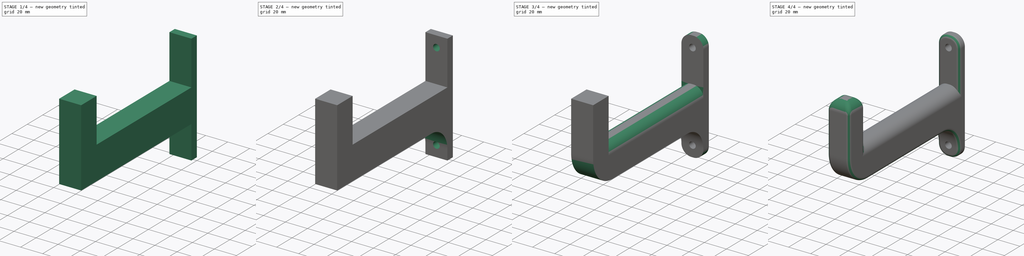
[diagram: build sequence overview — one tinted view per stage of 4, left to right]
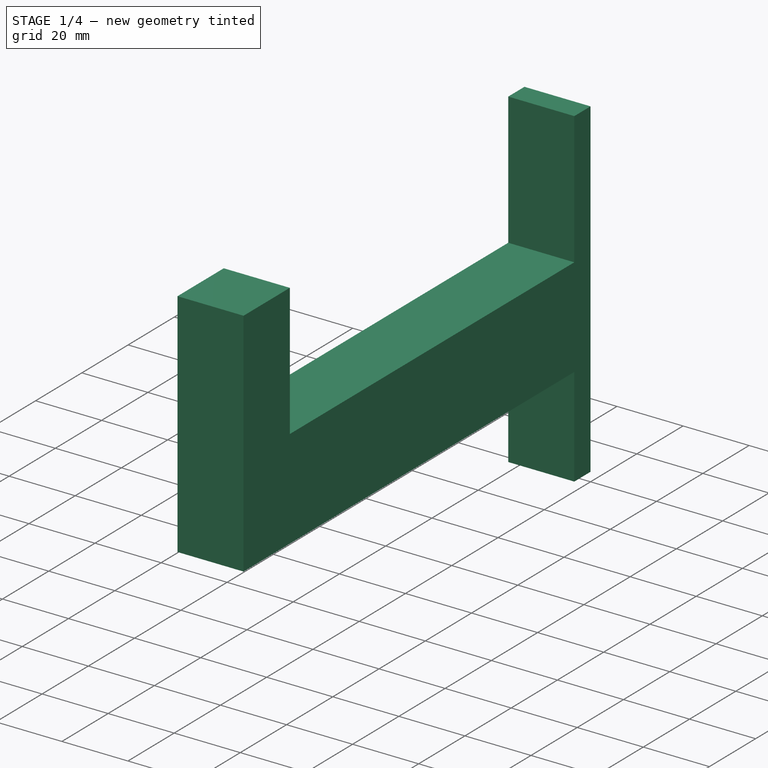
[diagram: stage 1 of 4 — iso view after this stage's code; geometry added in this stage tinted green]
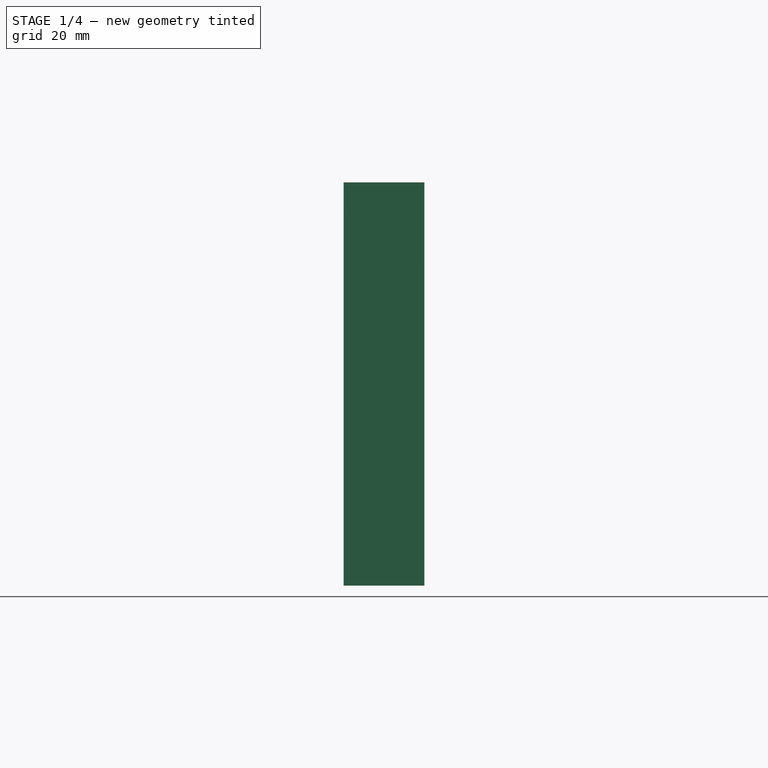
[diagram: stage 1 of 4 — front view after this stage's code; geometry added in this stage tinted green]
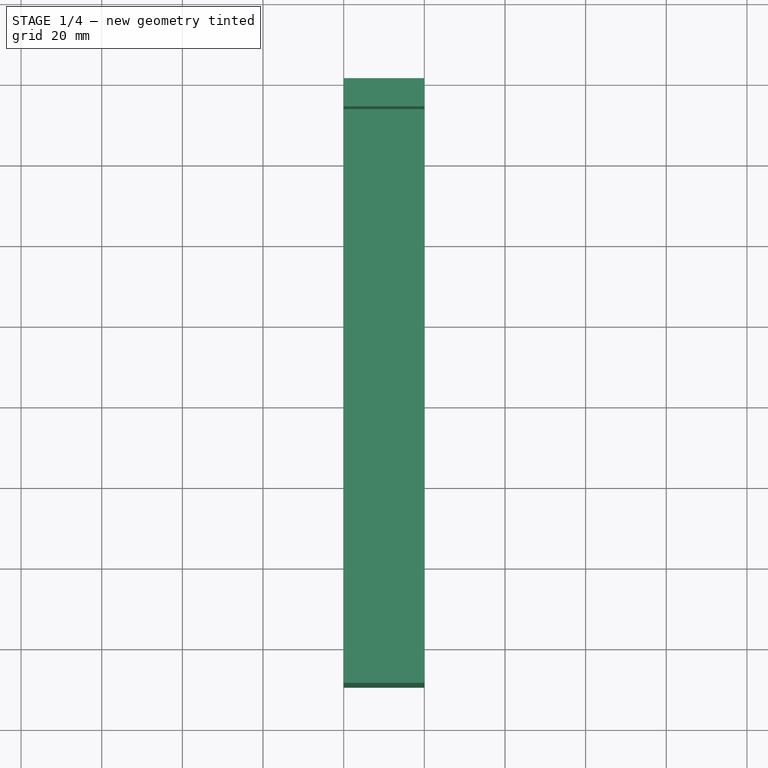
[diagram: stage 1 of 4 — top view after this stage's code; geometry added in this stage tinted green]
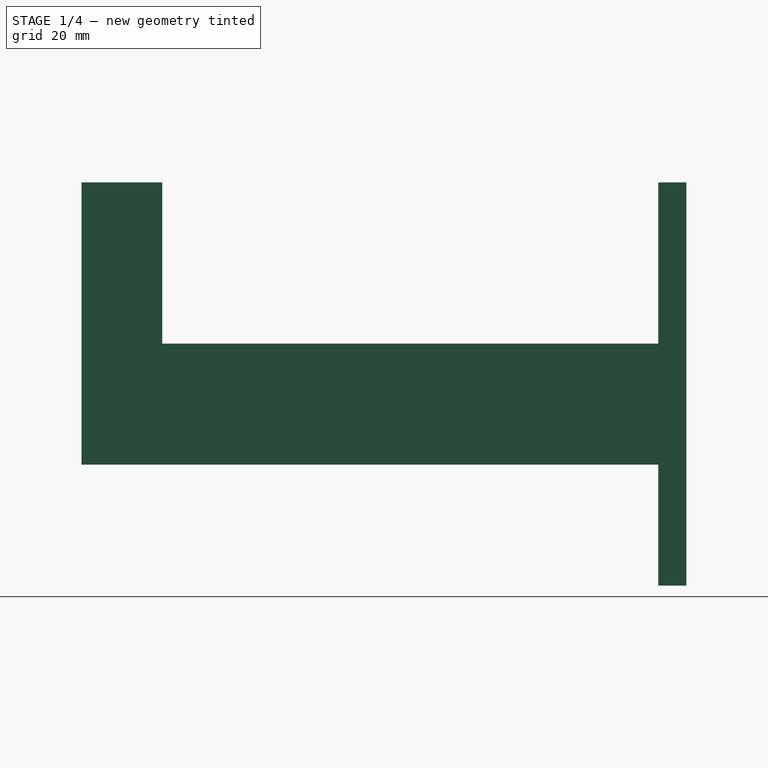
[diagram: stage 1 of 4 — right view after this stage's code; geometry added in this stage tinted green]
FCSTD DOCUMENT  (FreeCAD 1.1R20260325 (Git shallow))
Label: hanger_wall_hanger
License: All rights reserved
LicenseURL: https://en.wikipedia.org/wiki/All_rights_reserved
objects: PartDesign::Fillet×7, PartDesign::Pad×3, Sketcher::SketchObject×2, PartDesign::SubtractiveCylinder×2, App::Point×1, PartDesign::Body×1
note: 41 computed .brp shape members not serialized (recipe doc carries the construction recipe); baked Part::Feature solids carry a one-line shape summary decoded from their .brp

FEATURE [App::Point] Origin001
  Role = Origin
FEATURE [Sketcher::SketchObject] Sketch
  ArcFitTolerance = 1e-06
  AttachmentSupport = -> [Origin]
  ExternalTypes = [0]
  FullyConstrained = true
  MakeInternals = true
  MapMode = 5
  Placement = pos=(0,0,0) rot=(1,0,0;1.5708rad)
  _ExternalGeoVersion = 1
  sketch-geometry (10):
    g0: LineSegment StartX=0 StartY=0 StartZ=0 EndX=20 EndY=0 EndZ=0
    g1: LineSegment StartX=0 StartY=30 StartZ=0 EndX=0 EndY=0 EndZ=0
    g2: LineSegment StartX=0 StartY=30 StartZ=0 EndX=20 EndY=30 EndZ=0
    g3: LineSegment StartX=0 StartY=0 StartZ=0 EndX=0 EndY=70 EndZ=0
    g4: LineSegment StartX=0 StartY=70 StartZ=0 EndX=20 EndY=70 EndZ=0
    g5: LineSegment StartX=0 StartY=0 StartZ=0 EndX=0 EndY=-30 EndZ=0
    g6: LineSegment StartX=0 StartY=-30 StartZ=0 EndX=20 EndY=-30 EndZ=0
    g7: LineSegment StartX=20 StartY=-30 StartZ=0 EndX=20 EndY=0 EndZ=0
    g8: LineSegment StartX=20 StartY=0 StartZ=0 EndX=20 EndY=30 EndZ=0
    g9: LineSegment StartX=20 StartY=30 StartZ=0 EndX=20 EndY=70 EndZ=0
  constraints (27):
    c: Coincident(g1,g0)
    c: Horizontal(g0)
    c: Vertical(g1)
    c: Coincident(g0,g-1)
    c: DistanceY(g0,g2) = 30
    c: Coincident(g2,g1)
    c: Coincident(g3,g0)
    c: PointOnObject(g3,g-2)
    c: Coincident(g3,g4)
    c: DistanceY(g0,g4) = 70
    c: Coincident(g5,g0)
    c: Vertical(g5)
    c: Coincident(g6,g5)
    c: Horizontal(g6)
    c: Coincident(g7,g6)
    c: Coincident(g7,g0)
    c: Vertical(g7)
    c: DistanceX(g0,g0) = 20
    c: DistanceY(g7,g7) = 30
    c: Coincident(g8,g0)
    c: Coincident(g8,g2)
    c: Vertical(g8)
    c: Coincident(g9,g2)
    c: Coincident(g9,g4)
    c: Vertical(g9)
    c: Equal(g1,g8)
    c: Horizontal(g4)
FEATURE [PartDesign::Pad] Pad
  Direction = (0,-1,2e-16)
  Length = 150
  Length2 = 10
  Profile = -> Sketch [Edge6,Edge5,Edge7,Edge4]
  ReferenceAxis = -> Sketch [N_Axis]
  Refine = true
  SideType = 0
  Suppressed = false
  Type = 0
  Type2 = 0
FEATURE [Sketcher::SketchObject] Sketch001
  ArcFitTolerance = 1e-06
  ExternalTypes = [0]
  FullyConstrained = true
  MakeInternals = true
  MapMode = 5
  Placement = pos=(0,0,0) rot=(1,0,0;3.14159rad)
  _ExternalGeoVersion = 1
  sketch-geometry (4):
    g0: LineSegment StartX=0 StartY=150 StartZ=0 EndX=20 EndY=150 EndZ=0
    g1: LineSegment StartX=20 StartY=150 StartZ=0 EndX=20 EndY=130 EndZ=0
    g2: LineSegment StartX=20 StartY=130 StartZ=0 EndX=0 EndY=130 EndZ=0
    g3: LineSegment StartX=0 StartY=130 StartZ=0 EndX=0 EndY=150 EndZ=0
  constraints (10):
    c: Coincident(g0,g-3)
    c: Coincident(g0,g-3)
    c: Coincident(g1,g0)
    c: Vertical(g1)
    c: Coincident(g2,g1)
    c: PointOnObject(g2,g-2)
    c: Horizontal(g2)
    c: Coincident(g3,g2)
    c: Coincident(g3,g0)
    c: Equal(g1,g0)
FEATURE [PartDesign::Pad] Pad001
  BaseFeature = -> Pad
  Direction = (0,-1,2e-16)
  Length = 7
  Length2 = 10
  Profile = -> Sketch [Edge10,Edge8,Edge3,Edge1,Edge2,Edge5,Edge9]
  ReferenceAxis = -> Sketch [N_Axis]
  Refine = true
  SideType = 0
  Suppressed = false
  Type = 0
  Type2 = 0
FEATURE [PartDesign::Pad] Pad002
  BaseFeature = -> Pad001
  Direction = (0,0,-1)
  Length = 70
  Length2 = 10
  Profile = -> Sketch001
  ReferenceAxis = -> Sketch001 [N_Axis]
  Refine = true
  Reversed = true
  SideType = 0
  Suppressed = false
  Type = 0
  Type2 = 0
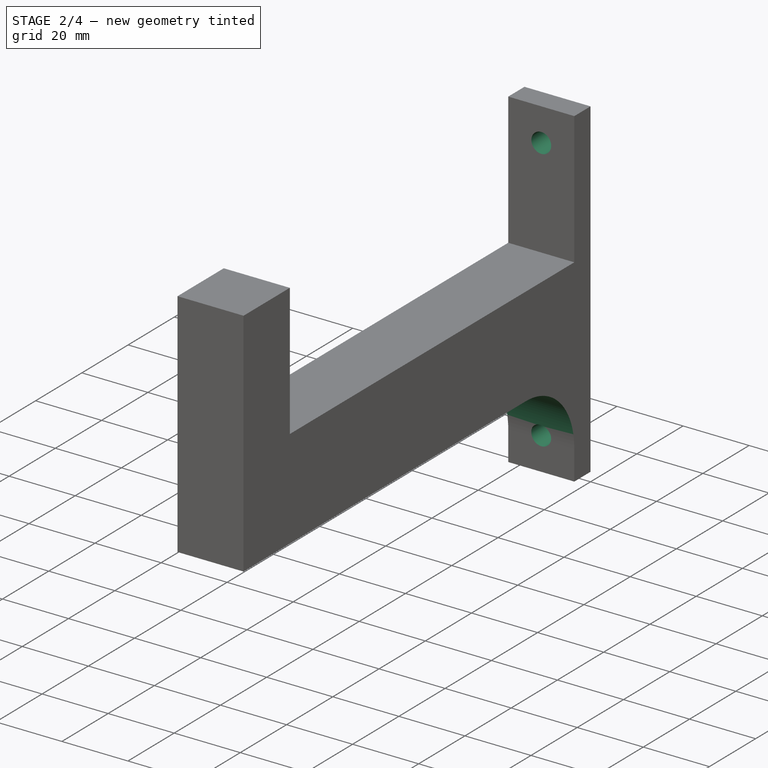
[diagram: stage 2 of 4 — iso view after this stage's code; geometry added in this stage tinted green]
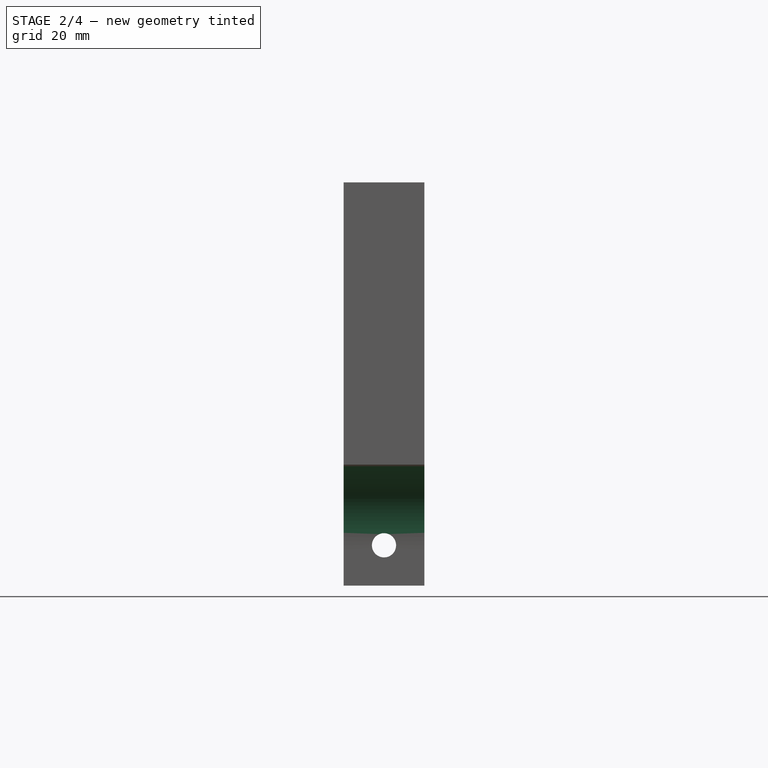
[diagram: stage 2 of 4 — front view after this stage's code; geometry added in this stage tinted green]
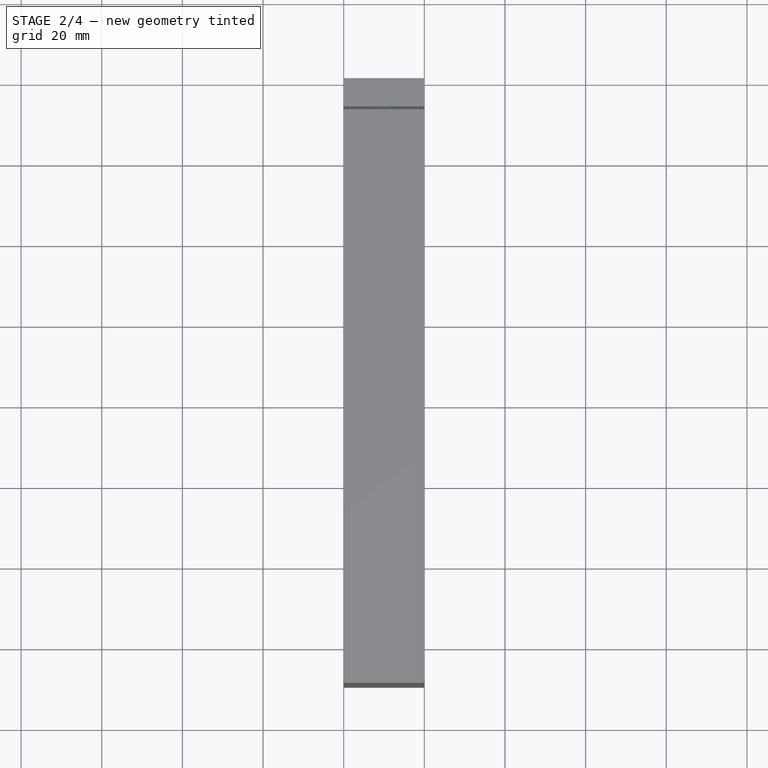
[diagram: stage 2 of 4 — top view after this stage's code; geometry added in this stage tinted green]
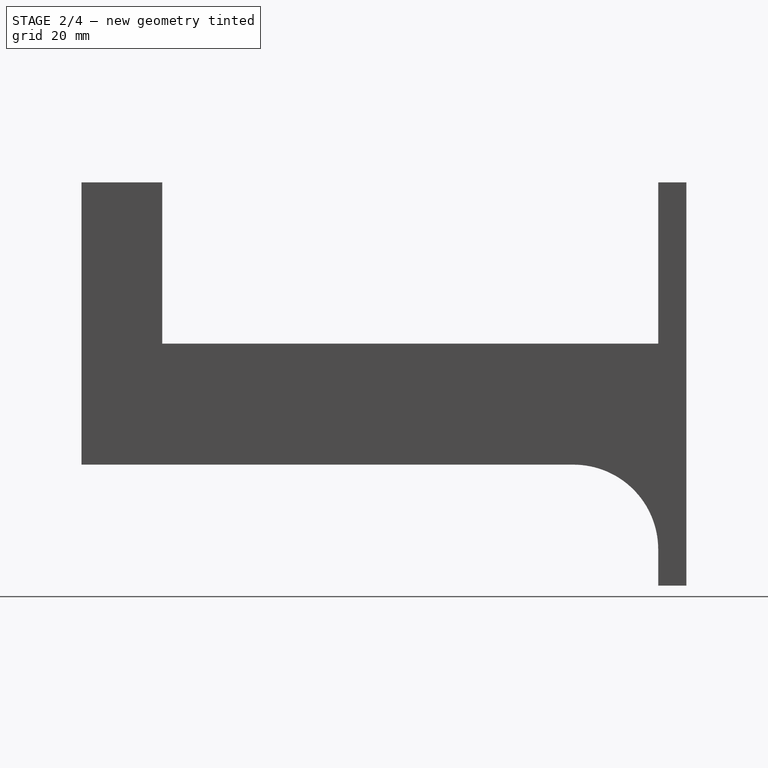
[diagram: stage 2 of 4 — right view after this stage's code; geometry added in this stage tinted green]
FEATURE [PartDesign::Fillet] Fillet
  Base = -> Pad002 [Edge18]
  BaseFeature = -> Pad002
  Radius = 21
  Refine = true
  SupportTransform = false
  Suppressed = false
  UseAllEdges = false
FEATURE [PartDesign::SubtractiveCylinder] Cylinder
  Angle = 360
  AttacherType = Attacher::AttachEngine3D
  AttachmentOffset = pos=(10,10,-9) rot=(0,0,1;0rad)
  AttachmentSupport = -> [Fillet]
  BaseFeature = -> Fillet
  FirstAngle = 0
  Height = 10
  MapMode = 7
  Placement = pos=(10,-9,-20) rot=(0,0.707107,0.707107;3.14159rad)
  Radius = 3
  Refine = true
  SecondAngle = 0
  Suppressed = false
FEATURE [PartDesign::SubtractiveCylinder] Cylinder001
  Angle = 360
  AttacherType = Attacher::AttachEngine3D
  AttachmentOffset = pos=(10,-10,-8) rot=(0,0,1;0rad)
  AttachmentSupport = -> [Cylinder]
  BaseFeature = -> Cylinder
  FirstAngle = 0
  Height = 10
  MapMode = 7
  Placement = pos=(10,-8,60) rot=(0,0.707107,0.707107;3.14159rad)
  Radius = 3
  Refine = true
  SecondAngle = 0
  Suppressed = false
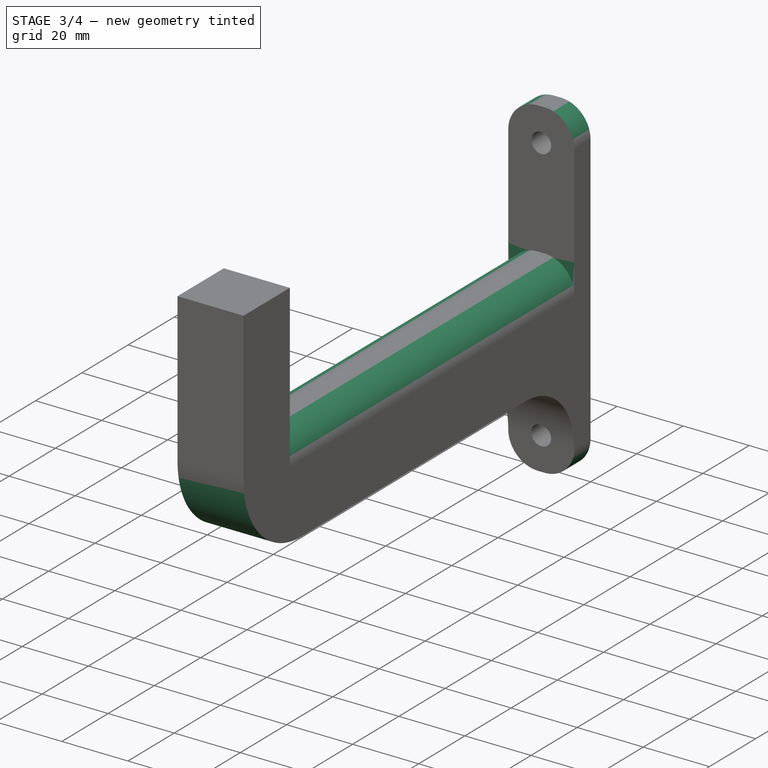
[diagram: stage 3 of 4 — iso view after this stage's code; geometry added in this stage tinted green]
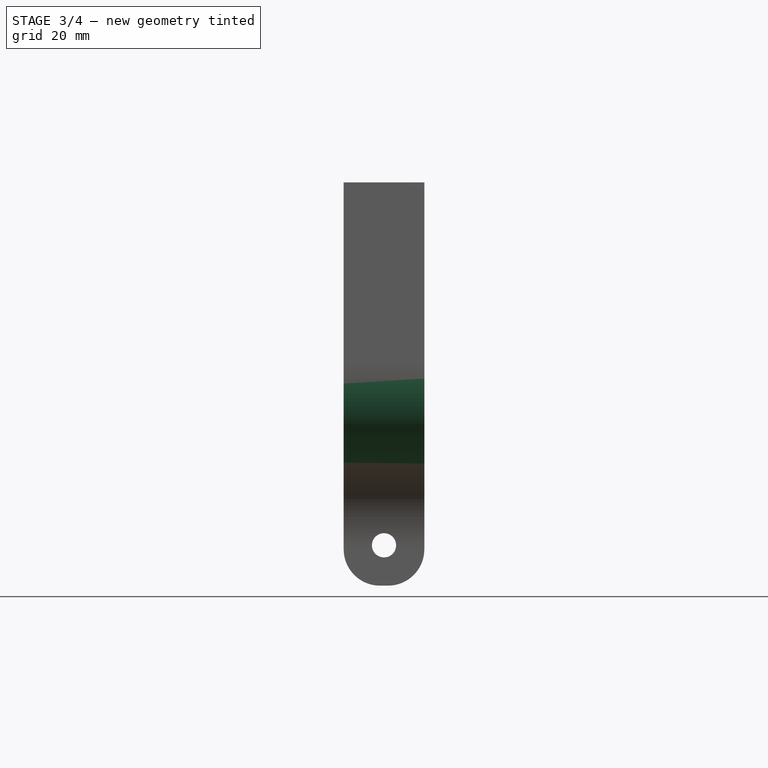
[diagram: stage 3 of 4 — front view after this stage's code; geometry added in this stage tinted green]
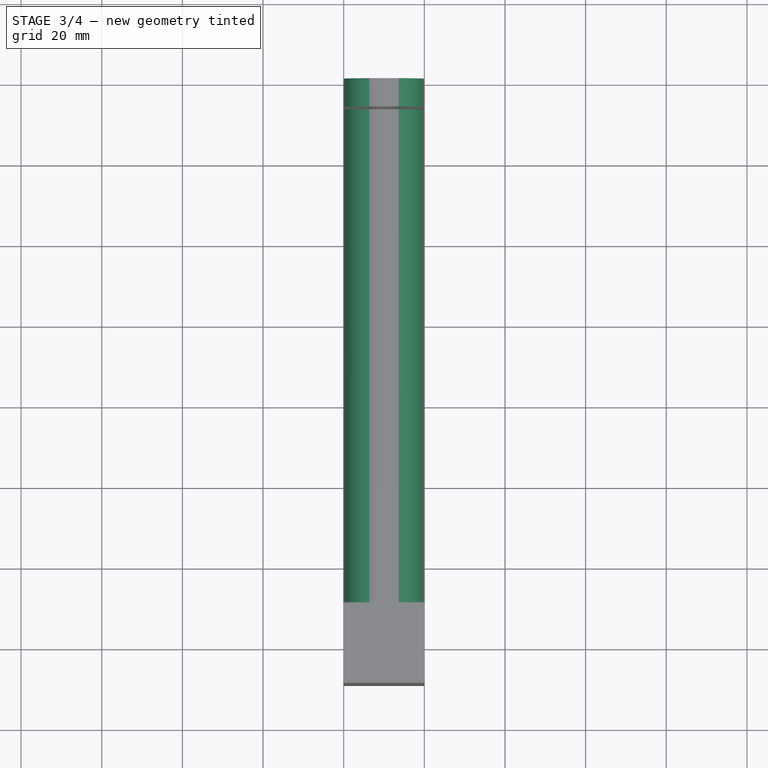
[diagram: stage 3 of 4 — top view after this stage's code; geometry added in this stage tinted green]
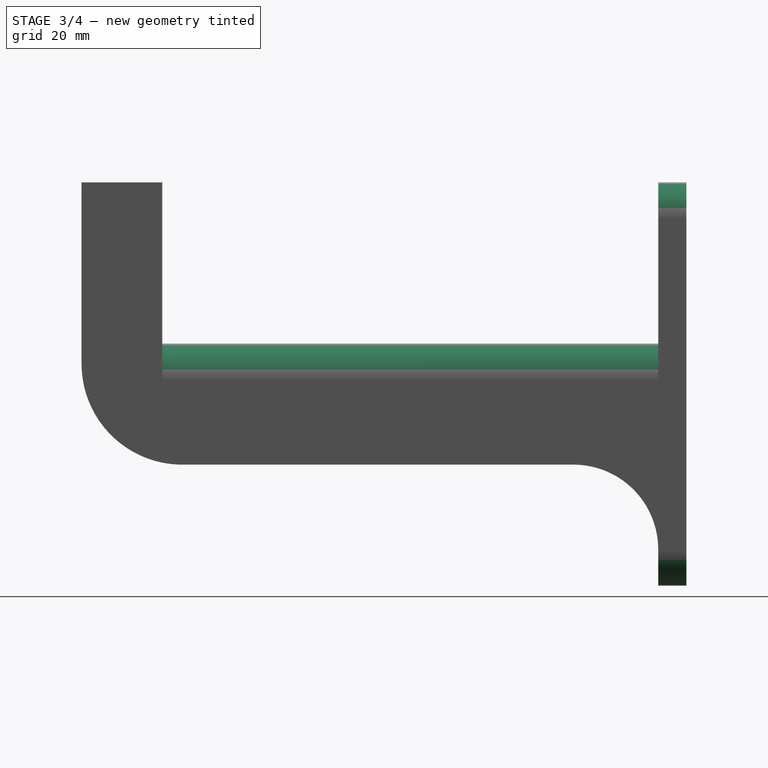
[diagram: stage 3 of 4 — right view after this stage's code; geometry added in this stage tinted green]
FEATURE [PartDesign::Fillet] Fillet001
  Base = -> Cylinder001 [Edge30,Edge22]
  BaseFeature = -> Cylinder001
  Placement = pos=(10,-8,60) rot=(0,0.707107,0.707107;3.14159rad)
  Radius = 9
  Refine = true
  SupportTransform = false
  Suppressed = false
  UseAllEdges = false
FEATURE [PartDesign::Fillet] Fillet002
  Base = -> Fillet001 [Edge42]
  BaseFeature = -> Fillet001
  Placement = pos=(10,-8,60) rot=(0,0.707107,0.707107;3.14159rad)
  Radius = 25
  Refine = true
  SupportTransform = false
  Suppressed = false
  UseAllEdges = false
FEATURE [PartDesign::Fillet] Fillet003
  Base = -> Fillet002 [Edge39,Edge10,Edge14,Edge51]
  BaseFeature = -> Fillet002
  Placement = pos=(10,-8,60) rot=(0,0.707107,0.707107;3.14159rad)
  Radius = 9
  Refine = true
  SupportTransform = false
  Suppressed = false
  UseAllEdges = false
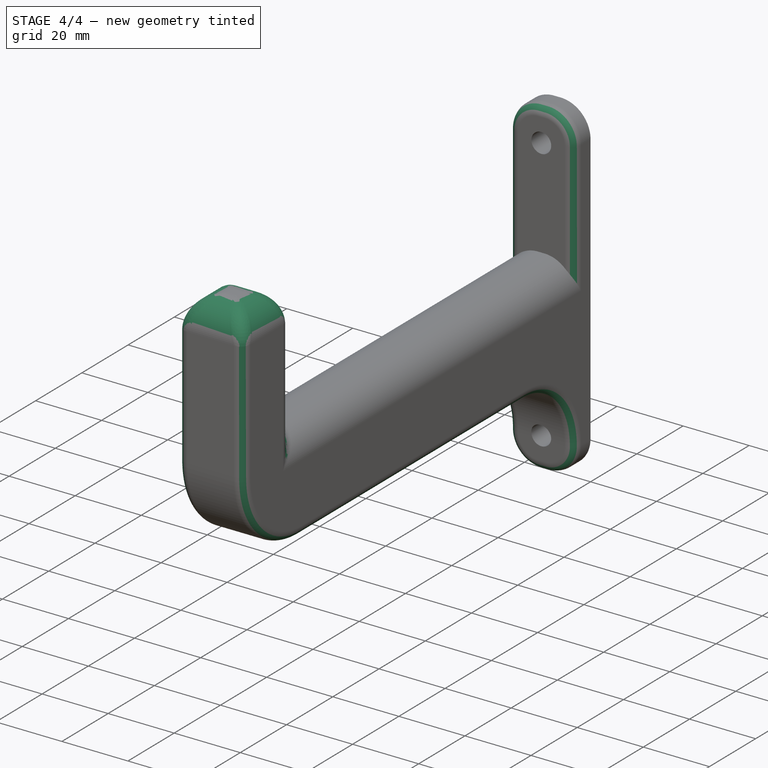
[diagram: stage 4 of 4 — iso view after this stage's code; geometry added in this stage tinted green]
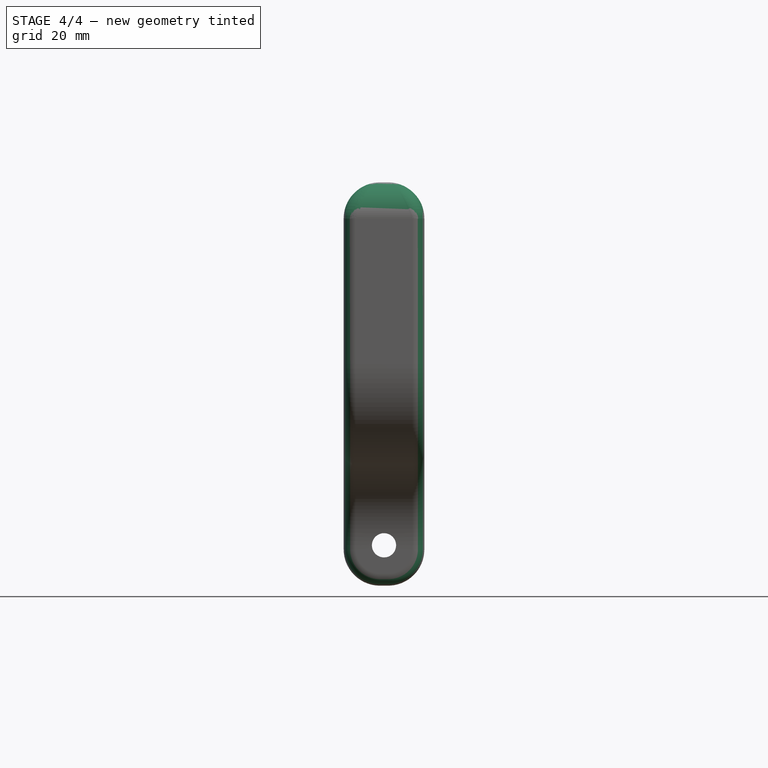
[diagram: stage 4 of 4 — front view after this stage's code; geometry added in this stage tinted green]
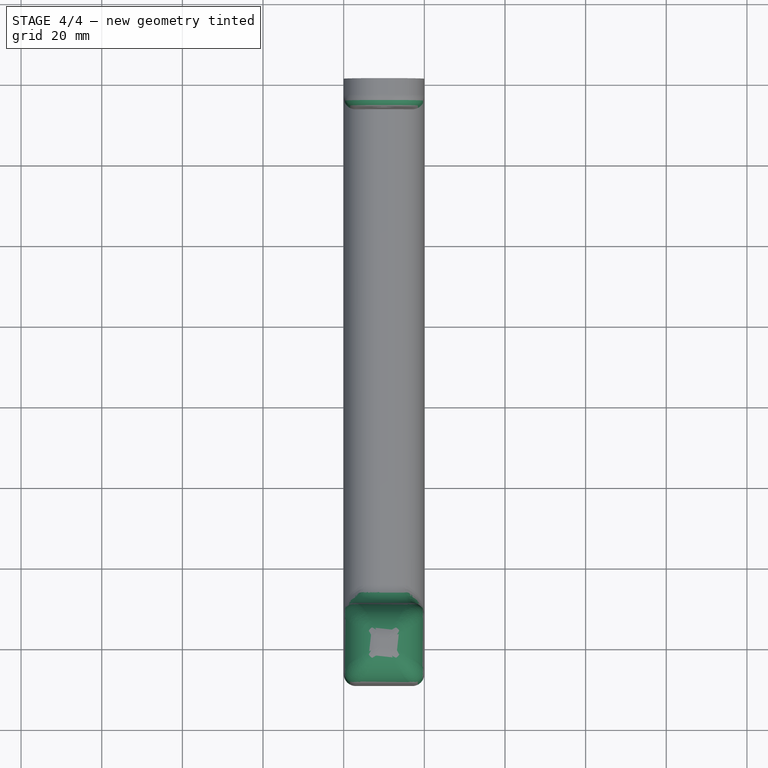
[diagram: stage 4 of 4 — top view after this stage's code; geometry added in this stage tinted green]
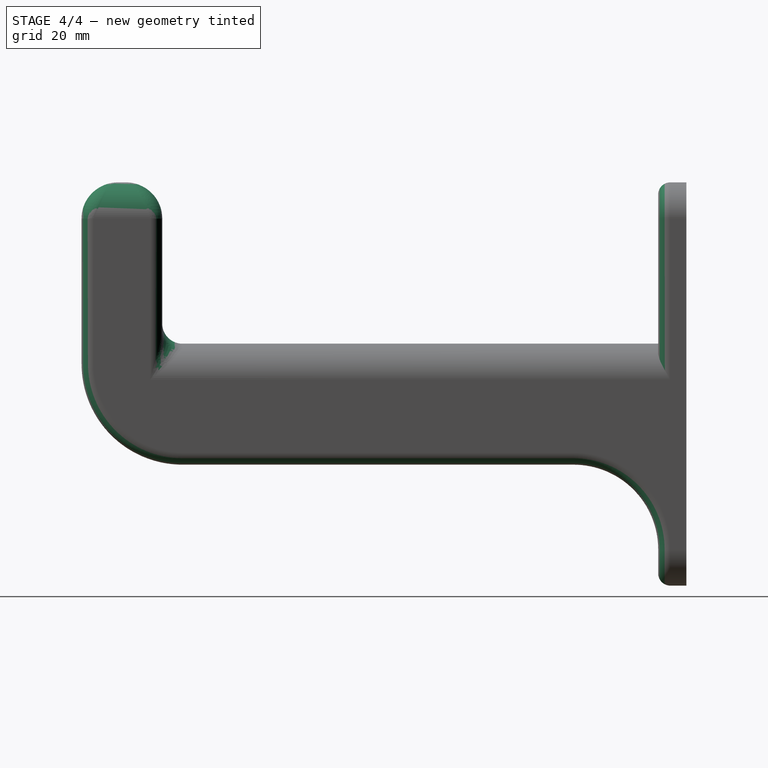
[diagram: stage 4 of 4 — right view after this stage's code; geometry added in this stage tinted green]
FEATURE [PartDesign::Fillet] Fillet004
  Base = -> Fillet003 [Edge12,Edge11,Edge53,Edge50,Edge27,Edge4]
  BaseFeature = -> Fillet003
  Placement = pos=(10,-8,60) rot=(0,0.707107,0.707107;3.14159rad)
  Radius = 3
  Refine = true
  SupportTransform = false
  Suppressed = false
  UseAllEdges = false
FEATURE [PartDesign::Fillet] Fillet005
  Base = -> Fillet004 [Edge11,Edge41,Edge39,Edge44]
  BaseFeature = -> Fillet004
  Placement = pos=(10,-8,60) rot=(0,0.707107,0.707107;3.14159rad)
  Radius = 9
  Refine = true
  SupportTransform = false
  Suppressed = false
  UseAllEdges = false
FEATURE [PartDesign::Fillet] Fillet006
  Base = -> Fillet005 [Edge60]
  BaseFeature = -> Fillet005
  Placement = pos=(10,-8,60) rot=(0,0.707107,0.707107;3.14159rad)
  Radius = 5
  Refine = true
  SupportTransform = false
  Suppressed = false
  UseAllEdges = false
FEATURE [PartDesign::Body] Body
  AllowCompound = false
  Group = -> [Sketch,Pad,Sketch001,Pad001,Pad002,Fillet,Cylinder,Cylinder001,Fillet001,Fillet002,Fillet003,Fillet004,Fillet005,Fillet006]
  Origin = -> Origin
  Tip = -> Fillet006
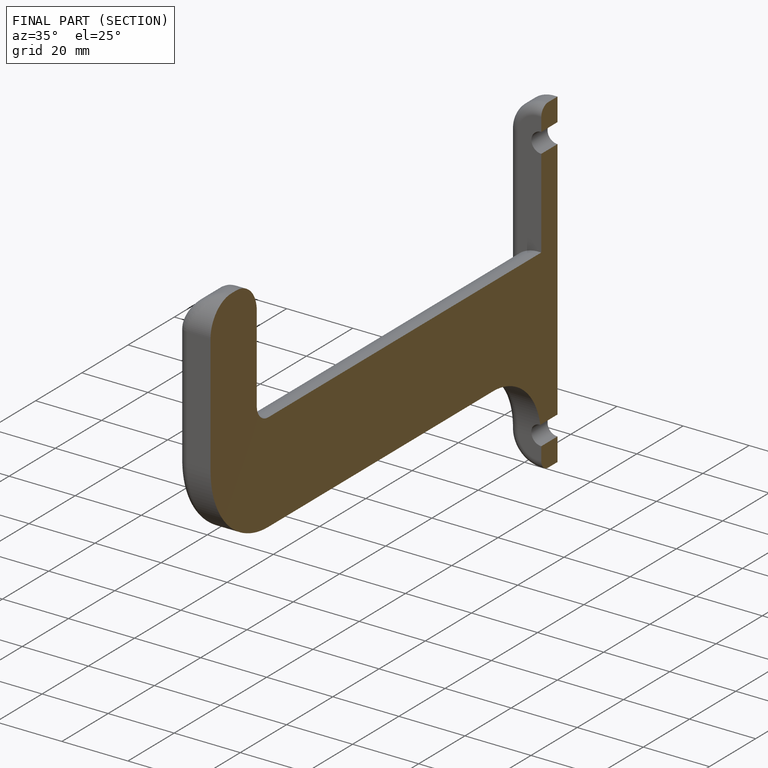
[diagram: finished part — half-section view (interior)]
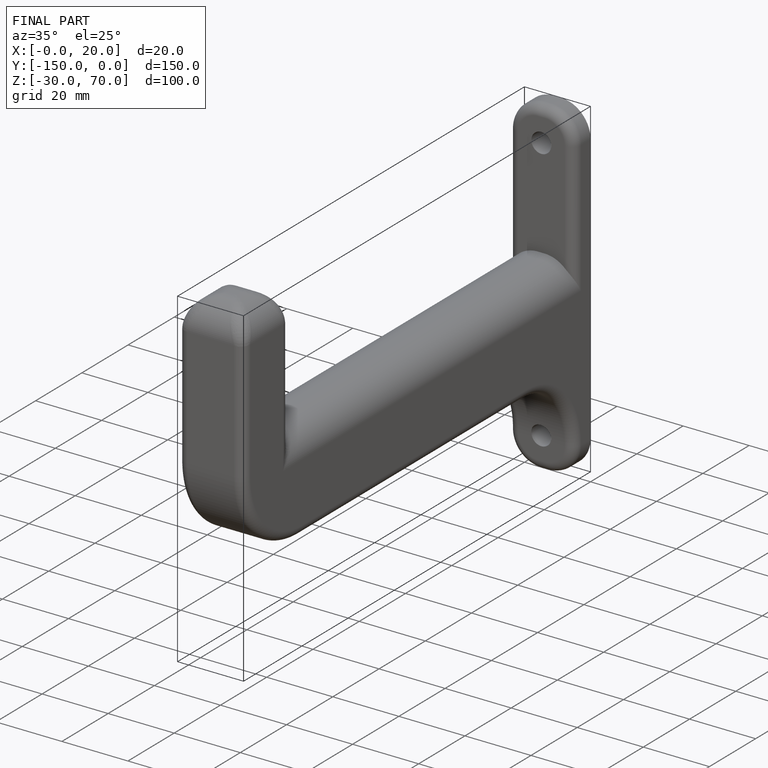
[diagram: finished part — iso view with bounding-box wireframe]
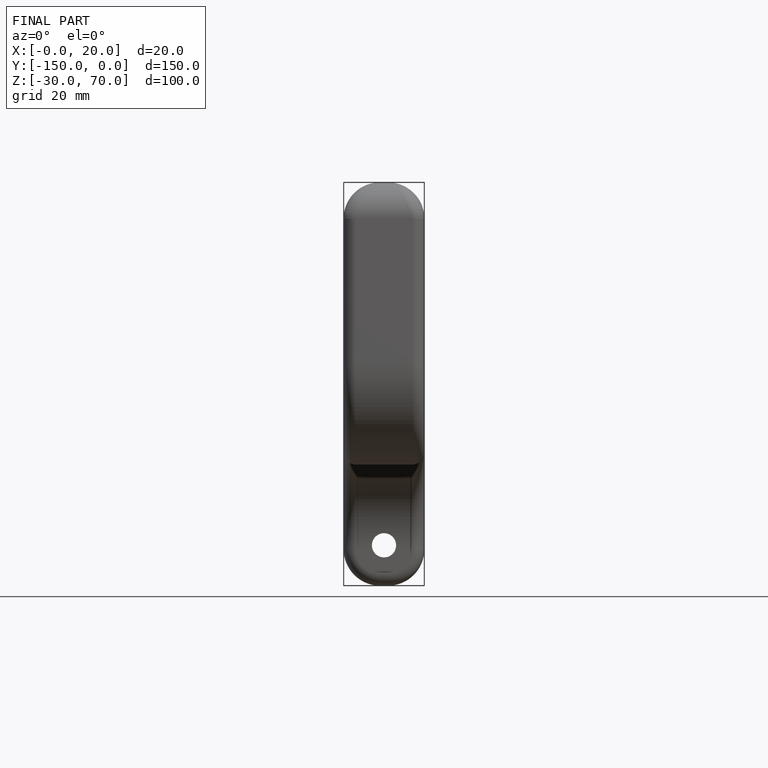
[diagram: finished part — front view with bounding-box wireframe]
